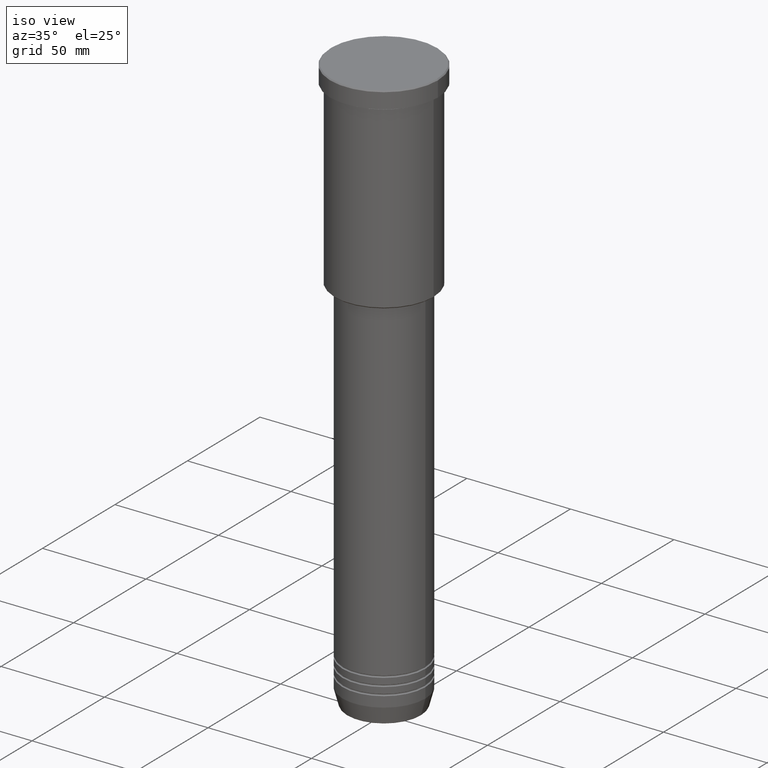
[diagram: clean part render]
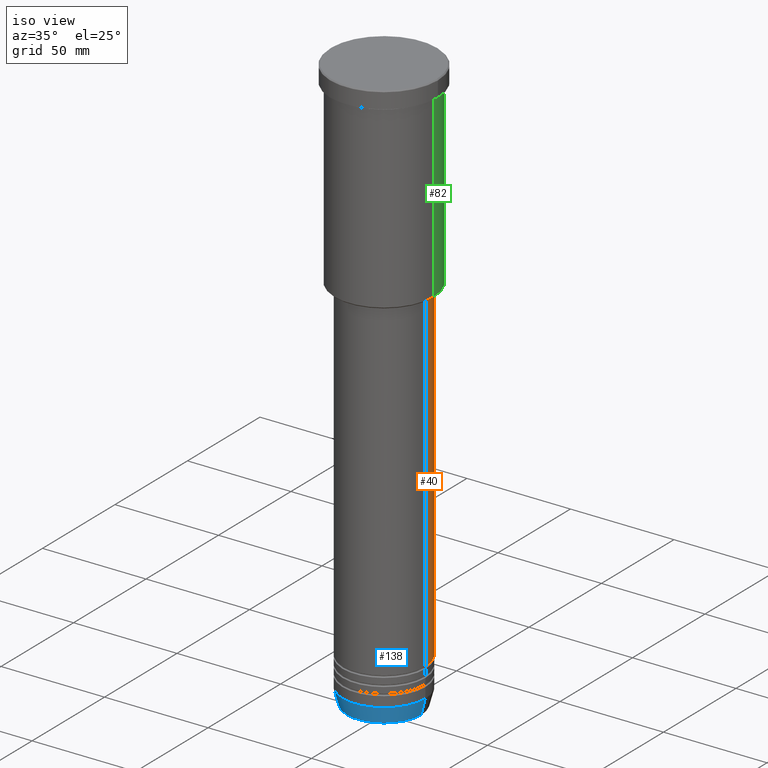
[diagram: same view with three faces highlighted in distinct colors, each labeled with its STEP entity id]
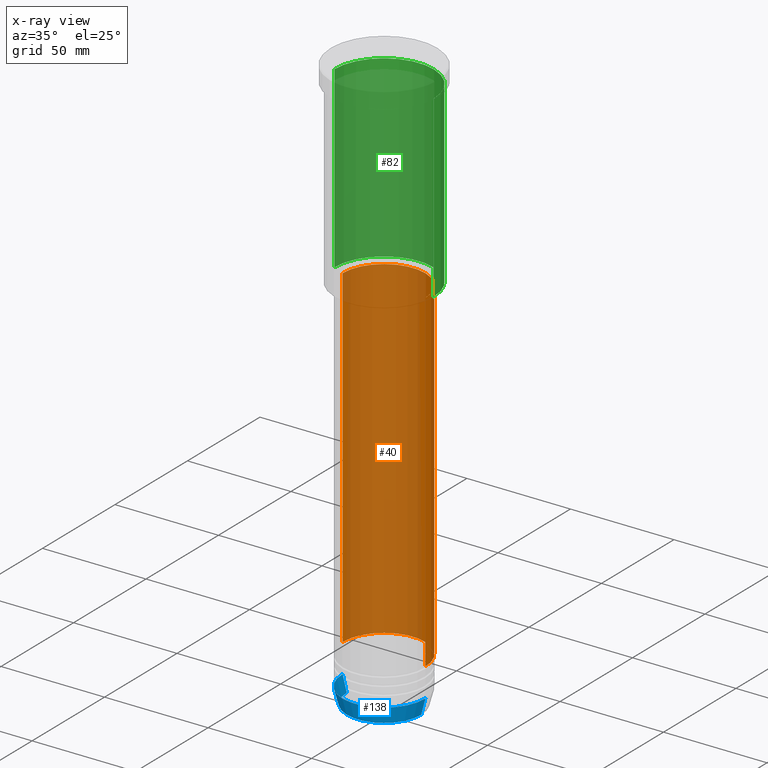
[diagram: x-ray of the same camera — body ghosted, the three highlighted faces saturated]
A machine part, iso view with three faces highlighted in distinct colors.
The next image is the same camera in x-ray (body ghosted, the three faces saturated) — at least one of them is partly hidden behind the body in this view.
Their STEP definitions:

[orange] entity #40 — the highlighted cylindrical surface (partial cylindrical patch) has radius 20 mm, axis along (-0, -0, 1).
#13 = CIRCLE ( 'NONE', #760, 20.00000000000000355 ) ;
#17 = DIRECTION ( 'NONE',  ( -0.000000000000000000, -0.000000000000000000, 1.000000000000000000 ) ) ;
#35 = ORIENTED_EDGE ( 'NONE', *, *, #275, .T. ) ;
#37 = CARTESIAN_POINT ( 'NONE',  ( -20.00000000000000355, 2.449293598294706907E-15, 0.000000000000000000 ) ) ;
#40 = ADVANCED_FACE ( 'NONE', ( #797 ), #871, .T. ) ;
#44 = VERTEX_POINT ( 'NONE', #59 ) ;
#59 = CARTESIAN_POINT ( 'NONE',  ( 20.00000000000000355, 0.000000000000000000, -97.00000000000002842 ) ) ;
#150 = VERTEX_POINT ( 'NONE', #560 ) ;
#151 = EDGE_LOOP ( 'NONE', ( #179, #35, #658, #990 ) ) ;
#179 = ORIENTED_EDGE ( 'NONE', *, *, #1087, .T. ) ;
#217 = DIRECTION ( 'NONE',  ( 1.000000000000000000, 0.000000000000000000, 0.000000000000000000 ) ) ;
#275 = EDGE_CURVE ( 'NONE', #543, #150, #314, .T. ) ;
#279 = VECTOR ( 'NONE', #297, 1000.000000000000000 ) ;
#297 = DIRECTION ( 'NONE',  ( -0.000000000000000000, -0.000000000000000000, 1.000000000000000000 ) ) ;
#314 = LINE ( 'NONE', #37, #279 ) ;
#327 = DIRECTION ( 'NONE',  ( -0.000000000000000000, -0.000000000000000000, 1.000000000000000000 ) ) ;
#346 = CARTESIAN_POINT ( 'NONE',  ( 20.00000000000000355, 0.000000000000000000, -258.0000000000000000 ) ) ;
#368 = CARTESIAN_POINT ( 'NONE',  ( 0.000000000000000000, 0.000000000000000000, -258.0000000000000000 ) ) ;
#373 = AXIS2_PLACEMENT_3D ( 'NONE', #1143, #327, #1055 ) ;
#436 = CIRCLE ( 'NONE', #1101, 20.00000000000000355 ) ;
#543 = VERTEX_POINT ( 'NONE', #807 ) ;
#560 = CARTESIAN_POINT ( 'NONE',  ( -20.00000000000000355, 2.449293598294706907E-15, -97.00000000000002842 ) ) ;
#644 = EDGE_CURVE ( 'NONE', #924, #44, #922, .T. ) ;
#658 = ORIENTED_EDGE ( 'NONE', *, *, #685, .F. ) ;
#676 = DIRECTION ( 'NONE',  ( -0.000000000000000000, -0.000000000000000000, 1.000000000000000000 ) ) ;
#685 = EDGE_CURVE ( 'NONE', #44, #150, #13, .T. ) ;
#701 = VECTOR ( 'NONE', #676, 1000.000000000000000 ) ;
#734 = DIRECTION ( 'NONE',  ( -0.000000000000000000, -0.000000000000000000, 1.000000000000000000 ) ) ;
#760 = AXIS2_PLACEMENT_3D ( 'NONE', #1034, #17, #217 ) ;
#797 = FACE_OUTER_BOUND ( 'NONE', #151, .T. ) ;
#807 = CARTESIAN_POINT ( 'NONE',  ( -20.00000000000000355, 2.449293598294706907E-15, -258.0000000000000000 ) ) ;
#865 = DIRECTION ( 'NONE',  ( 1.000000000000000000, 0.000000000000000000, 0.000000000000000000 ) ) ;
#871 = CYLINDRICAL_SURFACE ( 'NONE', #373, 20.00000000000000355 ) ;
#922 = LINE ( 'NONE', #1123, #701 ) ;
#924 = VERTEX_POINT ( 'NONE', #346 ) ;
#990 = ORIENTED_EDGE ( 'NONE', *, *, #644, .F. ) ;
#1034 = CARTESIAN_POINT ( 'NONE',  ( 0.000000000000000000, 0.000000000000000000, -97.00000000000002842 ) ) ;
#1055 = DIRECTION ( 'NONE',  ( 1.000000000000000000, 0.000000000000000000, 0.000000000000000000 ) ) ;
#1087 = EDGE_CURVE ( 'NONE', #924, #543, #436, .T. ) ;
#1101 = AXIS2_PLACEMENT_3D ( 'NONE', #368, #734, #865 ) ;
#1123 = CARTESIAN_POINT ( 'NONE',  ( 20.00000000000000355, 0.000000000000000000, 0.000000000000000000 ) ) ;
#1143 = CARTESIAN_POINT ( 'NONE',  ( 0.000000000000000000, 0.000000000000000000, 0.000000000000000000 ) ) ;

[blue] entity #138 — the highlighted conical surface has half-angle 15 deg.
#34 = VERTEX_POINT ( 'NONE', #975 ) ;
#78 = DIRECTION ( 'NONE',  ( 1.000000000000000000, 0.000000000000000000, 0.000000000000000000 ) ) ;
#96 = DIRECTION ( 'NONE',  ( 1.000000000000000000, 0.000000000000000000, 0.000000000000000000 ) ) ;
#103 = DIRECTION ( 'NONE',  ( -0.000000000000000000, -0.000000000000000000, 1.000000000000000000 ) ) ;
#128 = CIRCLE ( 'NONE', #359, 17.95570587970608045 ) ;
#133 = ORIENTED_EDGE ( 'NONE', *, *, #538, .T. ) ;
#138 = ADVANCED_FACE ( 'NONE', ( #998 ), #277, .T. ) ;
#164 = DIRECTION ( 'NONE',  ( -0.000000000000000000, -0.000000000000000000, 1.000000000000000000 ) ) ;
#178 = CARTESIAN_POINT ( 'NONE',  ( 0.000000000000000000, 0.000000000000000000, -272.0000000000000000 ) ) ;
#232 = VECTOR ( 'NONE', #1102, 1000.000000000000114 ) ;
#267 = CARTESIAN_POINT ( 'NONE',  ( 0.000000000000000000, 0.000000000000000000, -279.6294095225512706 ) ) ;
#277 = CONICAL_SURFACE ( 'NONE', #505, 20.00000000000000355, 0.2617993877991499629 ) ;
#284 = LINE ( 'NONE', #1050, #232 ) ;
#286 = DIRECTION ( 'NONE',  ( -0.000000000000000000, -0.000000000000000000, 1.000000000000000000 ) ) ;
#306 = ORIENTED_EDGE ( 'NONE', *, *, #972, .F. ) ;
#311 = VERTEX_POINT ( 'NONE', #1035 ) ;
#313 = CARTESIAN_POINT ( 'NONE',  ( 20.00000000000000355, 0.000000000000000000, -272.0000000000000000 ) ) ;
#323 = ORIENTED_EDGE ( 'NONE', *, *, #650, .T. ) ;
#359 = AXIS2_PLACEMENT_3D ( 'NONE', #267, #103, #78 ) ;
#475 = CARTESIAN_POINT ( 'NONE',  ( 20.00000000000000355, 0.000000000000000000, -272.0000000000000000 ) ) ;
#492 = DIRECTION ( 'NONE',  ( 0.2588190451025212391, 0.000000000000000000, 0.9659258262890680902 ) ) ;
#494 = ORIENTED_EDGE ( 'NONE', *, *, #1133, .F. ) ;
#505 = AXIS2_PLACEMENT_3D ( 'NONE', #178, #286, #652 ) ;
#528 = AXIS2_PLACEMENT_3D ( 'NONE', #1002, #164, #96 ) ;
#538 = EDGE_CURVE ( 'NONE', #34, #578, #128, .T. ) ;
#578 = VERTEX_POINT ( 'NONE', #1015 ) ;
#650 = EDGE_CURVE ( 'NONE', #578, #765, #749, .T. ) ;
#652 = DIRECTION ( 'NONE',  ( 1.000000000000000000, 0.000000000000000000, 0.000000000000000000 ) ) ;
#749 = LINE ( 'NONE', #313, #779 ) ;
#765 = VERTEX_POINT ( 'NONE', #475 ) ;
#779 = VECTOR ( 'NONE', #492, 1000.000000000000114 ) ;
#847 = EDGE_LOOP ( 'NONE', ( #494, #133, #323, #306 ) ) ;
#972 = EDGE_CURVE ( 'NONE', #311, #765, #1082, .T. ) ;
#975 = CARTESIAN_POINT ( 'NONE',  ( -17.95570587970608045, 2.324116685748021371E-15, -279.6294095225512706 ) ) ;
#998 = FACE_OUTER_BOUND ( 'NONE', #847, .T. ) ;
#1002 = CARTESIAN_POINT ( 'NONE',  ( 0.000000000000000000, 0.000000000000000000, -272.0000000000000000 ) ) ;
#1015 = CARTESIAN_POINT ( 'NONE',  ( 17.95570587970608045, 0.000000000000000000, -279.6294095225512706 ) ) ;
#1035 = CARTESIAN_POINT ( 'NONE',  ( -20.00000000000000355, 2.449293598294706907E-15, -272.0000000000000000 ) ) ;
#1050 = CARTESIAN_POINT ( 'NONE',  ( -20.00000000000000355, 2.449293598294706907E-15, -272.0000000000000000 ) ) ;
#1082 = CIRCLE ( 'NONE', #528, 20.00000000000000355 ) ;
#1102 = DIRECTION ( 'NONE',  ( -0.2588190451025212391, 3.169619151431771721E-17, 0.9659258262890680902 ) ) ;
#1133 = EDGE_CURVE ( 'NONE', #34, #311, #284, .T. ) ;

[green] entity #82 — the highlighted cylindrical surface (partial cylindrical patch) has radius 24 mm, axis along (-0, -0, 1).
#38 = VERTEX_POINT ( 'NONE', #506 ) ;
#54 = DIRECTION ( 'NONE',  ( -0.000000000000000000, -0.000000000000000000, 1.000000000000000000 ) ) ;
#82 = ADVANCED_FACE ( 'NONE', ( #464 ), #93, .T. ) ;
#93 = CYLINDRICAL_SURFACE ( 'NONE', #109, 24.00000000000000000 ) ;
#100 = DIRECTION ( 'NONE',  ( -0.000000000000000000, -0.000000000000000000, 1.000000000000000000 ) ) ;
#107 = LINE ( 'NONE', #495, #883 ) ;
#109 = AXIS2_PLACEMENT_3D ( 'NONE', #370, #633, #919 ) ;
#110 = DIRECTION ( 'NONE',  ( -1.000000000000000000, 0.000000000000000000, 0.000000000000000000 ) ) ;
#134 = DIRECTION ( 'NONE',  ( -0.000000000000000000, -0.000000000000000000, 1.000000000000000000 ) ) ;
#135 = VERTEX_POINT ( 'NONE', #196 ) ;
#143 = CARTESIAN_POINT ( 'NONE',  ( 24.00000000000000000, 0.000000000000000000, 0.000000000000000000 ) ) ;
#152 = EDGE_CURVE ( 'NONE', #38, #371, #523, .T. ) ;
#187 = CIRCLE ( 'NONE', #205, 24.00000000000000000 ) ;
#196 = CARTESIAN_POINT ( 'NONE',  ( -24.00000000000000000, 2.939152317953647894E-15, -8.999999999999994671 ) ) ;
#205 = AXIS2_PLACEMENT_3D ( 'NONE', #866, #684, #228 ) ;
#228 = DIRECTION ( 'NONE',  ( 1.000000000000000000, 0.000000000000000000, 0.000000000000000000 ) ) ;
#256 = ORIENTED_EDGE ( 'NONE', *, *, #1172, .F. ) ;
#370 = CARTESIAN_POINT ( 'NONE',  ( 0.000000000000000000, 0.000000000000000000, 0.000000000000000000 ) ) ;
#371 = VERTEX_POINT ( 'NONE', #515 ) ;
#387 = VECTOR ( 'NONE', #134, 1000.000000000000000 ) ;
#401 = ORIENTED_EDGE ( 'NONE', *, *, #928, .F. ) ;
#464 = FACE_OUTER_BOUND ( 'NONE', #987, .T. ) ;
#495 = CARTESIAN_POINT ( 'NONE',  ( -24.00000000000000000, 2.939152317953647894E-15, 0.000000000000000000 ) ) ;
#506 = CARTESIAN_POINT ( 'NONE',  ( 24.00000000000000000, 0.000000000000000000, -95.49999999999995737 ) ) ;
#515 = CARTESIAN_POINT ( 'NONE',  ( -24.00000000000000000, 2.939152317953647894E-15, -95.49999999999995737 ) ) ;
#523 = CIRCLE ( 'NONE', #719, 24.00000000000000000 ) ;
#592 = CARTESIAN_POINT ( 'NONE',  ( 24.00000000000000000, 0.000000000000000000, -8.999999999999994671 ) ) ;
#633 = DIRECTION ( 'NONE',  ( -0.000000000000000000, -0.000000000000000000, 1.000000000000000000 ) ) ;
#681 = LINE ( 'NONE', #143, #387 ) ;
#684 = DIRECTION ( 'NONE',  ( -0.000000000000000000, -0.000000000000000000, 1.000000000000000000 ) ) ;
#719 = AXIS2_PLACEMENT_3D ( 'NONE', #825, #100, #110 ) ;
#757 = ORIENTED_EDGE ( 'NONE', *, *, #152, .T. ) ;
#823 = ORIENTED_EDGE ( 'NONE', *, *, #1181, .T. ) ;
#825 = CARTESIAN_POINT ( 'NONE',  ( 0.000000000000000000, 0.000000000000000000, -95.49999999999995737 ) ) ;
#866 = CARTESIAN_POINT ( 'NONE',  ( 0.000000000000000000, 0.000000000000000000, -8.999999999999994671 ) ) ;
#883 = VECTOR ( 'NONE', #54, 1000.000000000000000 ) ;
#919 = DIRECTION ( 'NONE',  ( 1.000000000000000000, 0.000000000000000000, 0.000000000000000000 ) ) ;
#928 = EDGE_CURVE ( 'NONE', #939, #135, #187, .T. ) ;
#939 = VERTEX_POINT ( 'NONE', #592 ) ;
#987 = EDGE_LOOP ( 'NONE', ( #757, #823, #401, #256 ) ) ;
#1172 = EDGE_CURVE ( 'NONE', #38, #939, #681, .T. ) ;
#1181 = EDGE_CURVE ( 'NONE', #371, #135, #107, .T. ) ;